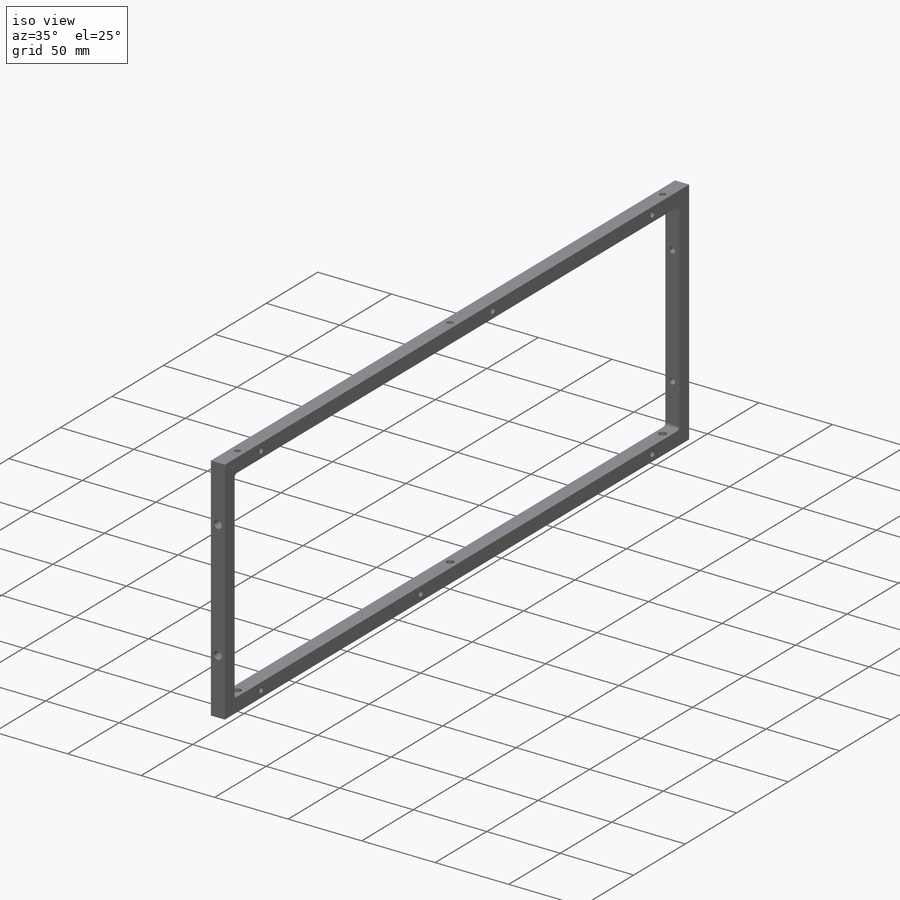
[diagram: iso view]
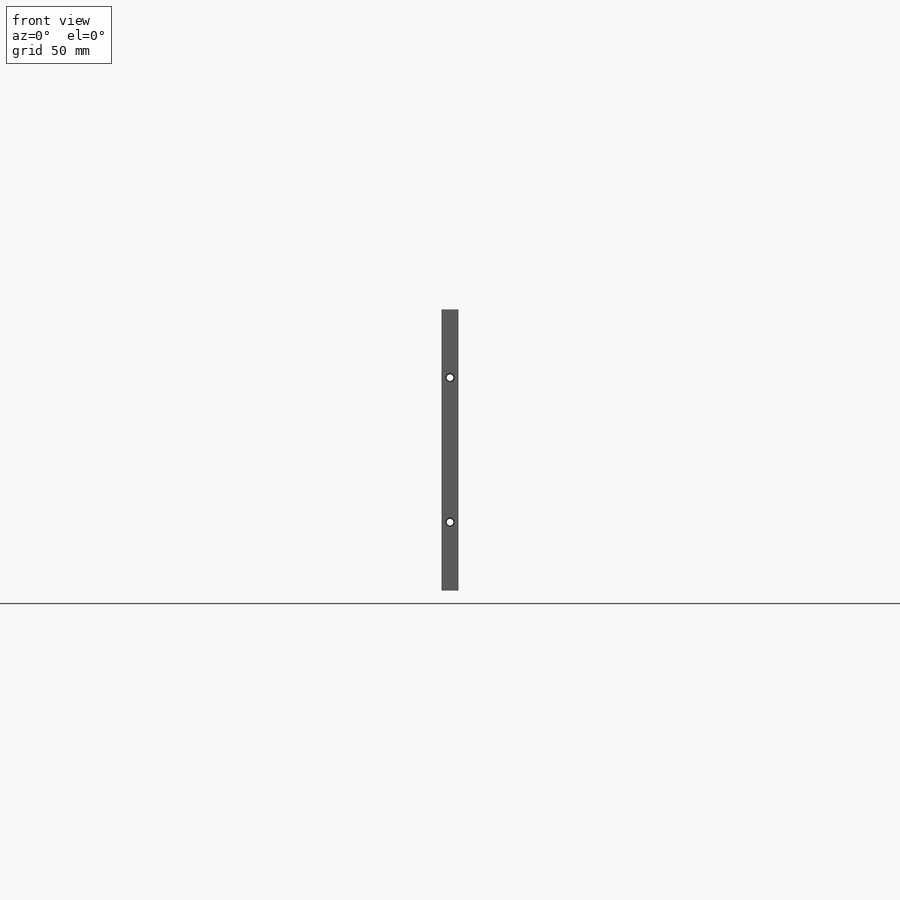
[diagram: front view]
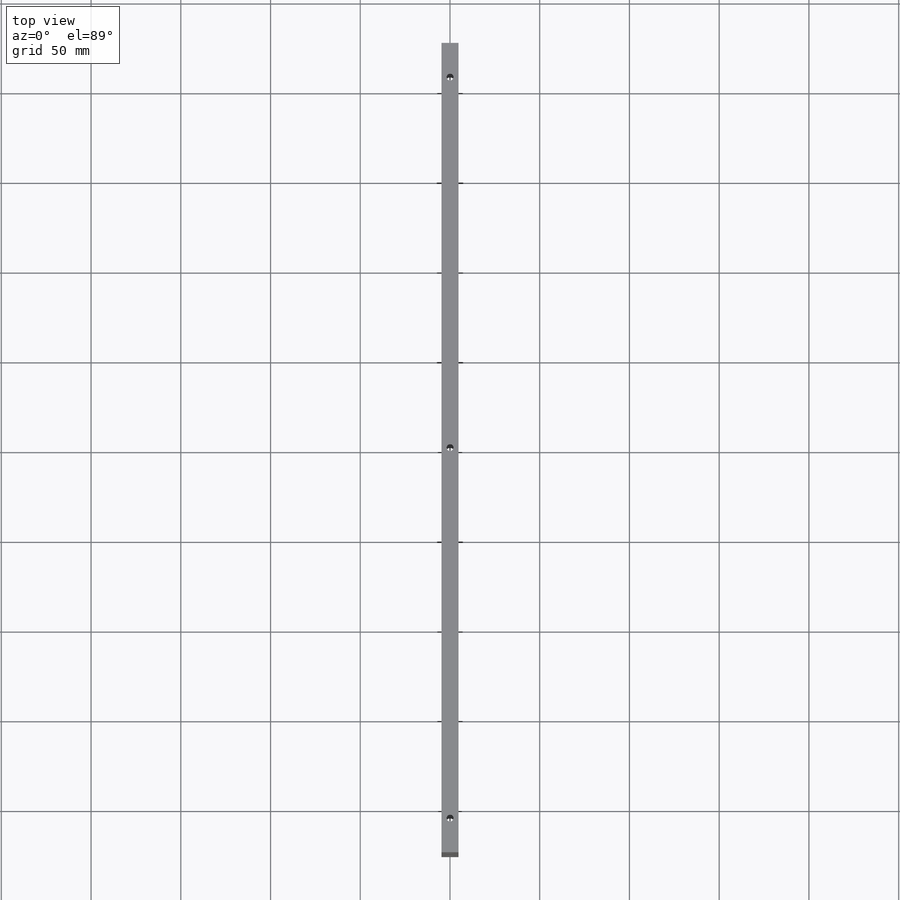
[diagram: top view]
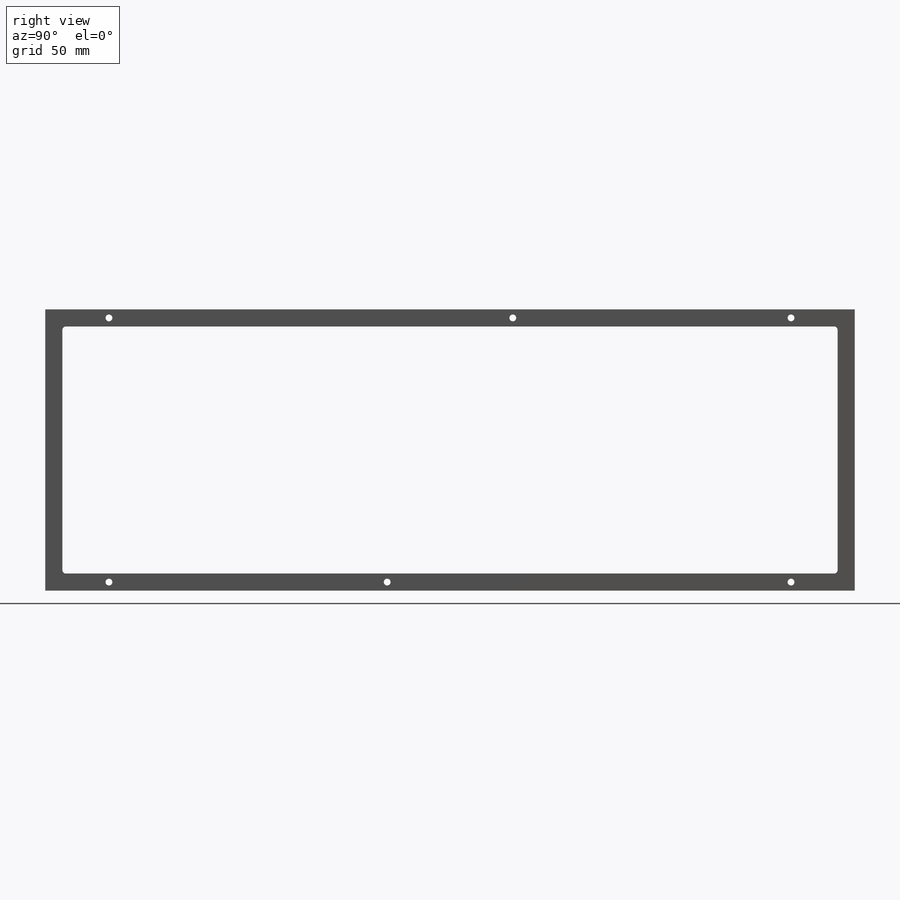
[diagram: right view]
SOLIDWORKS PART (.sldprt)
format: sldprt  version: not decoded by parser v0  size: 381,440 bytes
history: native  units: mm
features: sketch x11, thread x11, hole x5, material x1, fillet x1 (+11 scaffold rows collapsed)
feature tree (40):
  scaffold x11  (default folders/planes/origin — collapsed)
  material  "6061-T6 (SS)"
  sketch  "Sketch1"  dims[c1.D1=451.0mm c1.D2=~156.707217mm c2.D1=9.525mm c2.D5=9.525mm c2.D6=1.0mm c2.D7=5.0mm]
  fillet  "Fillet1"  Radius=2mm
  hole  "#10 Clearance Hole1"  Diameter=4.9784mm Depth=9.525mm
  sketch  "Sketch3"  dims[D1=19.05mm]
  sketch  "Sketch2"  dims[hole-wizard template sketch: 60 standard entries collapsed; hole parameters kept: c18.Thru Hole Depth=9.525mm]
  hole  "#10-24 Tapped Hole1"  Diameter=3.7973mm Depth=250.46mm
  sketch  "Sketch5"  dims[D1=38.1mm]
  sketch  "Sketch4"  dims[hole-wizard template sketch: 47 standard entries collapsed; hole parameters kept: c15.Tap Drill Depth=250.46mm c15.D3=~14.816244mm c15.Drill Angle=118.0deg]
  thread  "Hole Thread1"  Diameter=9.525mm  [1 undecoded]
  thread  "Hole Thread2"  Diameter=9.525mm  [1 undecoded]
  hole  "#10 Clearance Hole2"  Diameter=5.1054mm Depth=20mm
  sketch  "Sketch7"
  sketch  "Sketch6"  dims[hole-wizard template sketch: 47 standard entries collapsed; hole parameters kept: c15.Hole Depth=20.0mm c15.D3=~14.816244mm c15.Drill Angle=118.0deg]
  hole  "#10-24 Tapped Hole2"  Diameter=3.7973mm Depth=14.95mm
  sketch  "Sketch9"  dims[D1=190.0mm D2=35.0mm D3=35.0mm]
  sketch  "Sketch8"  dims[hole-wizard template sketch: 50 standard entries collapsed; hole parameters above]
  thread  "Hole Thread4"  Diameter=9.525mm  [1 undecoded]
  thread  "Hole Thread5"  Diameter=9.525mm  [1 undecoded]
  thread  "Hole Thread6"  Diameter=9.525mm  [1 undecoded]
  thread  "Hole Thread7"  Diameter=9.525mm  [1 undecoded]
  thread  "Hole Thread8"  Diameter=9.525mm  [1 undecoded]
  thread  "Hole Thread9"  Diameter=9.525mm  [1 undecoded]
  hole  "#10-24 Tapped Hole3"  Diameter=3.7973mm Depth=14.95mm
  sketch  "Sketch11"
  sketch  "Sketch10"  dims[hole-wizard template sketch: 50 standard entries collapsed; hole parameters above]
  thread  "Hole Thread10"  Diameter=9.525mm  [1 undecoded]
  thread  "Hole Thread11"  Diameter=9.525mm  [1 undecoded]
  thread  "Hole Thread12"  Diameter=9.525mm  [1 undecoded]
decode coverage: 26 of 28 modeling features carry decoded parameters
note: ~ marks probable driven/reference dimensions
note: 11 parameter values undecoded
summary: Diameter pulled from absorbed wizard sketch
note: suppression state not decoded; provenance and decode notes live in map.json
